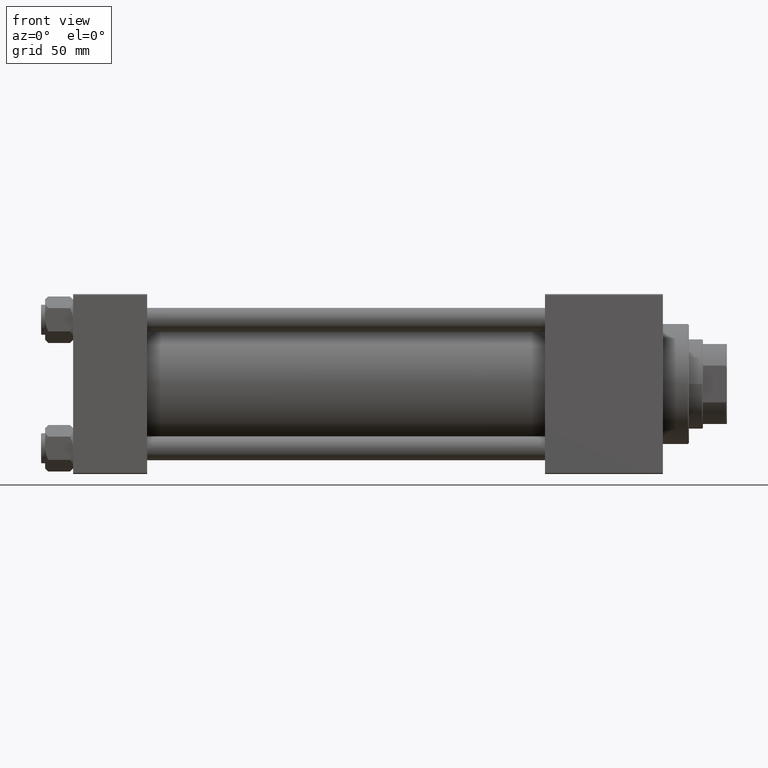
[diagram: clean part render]
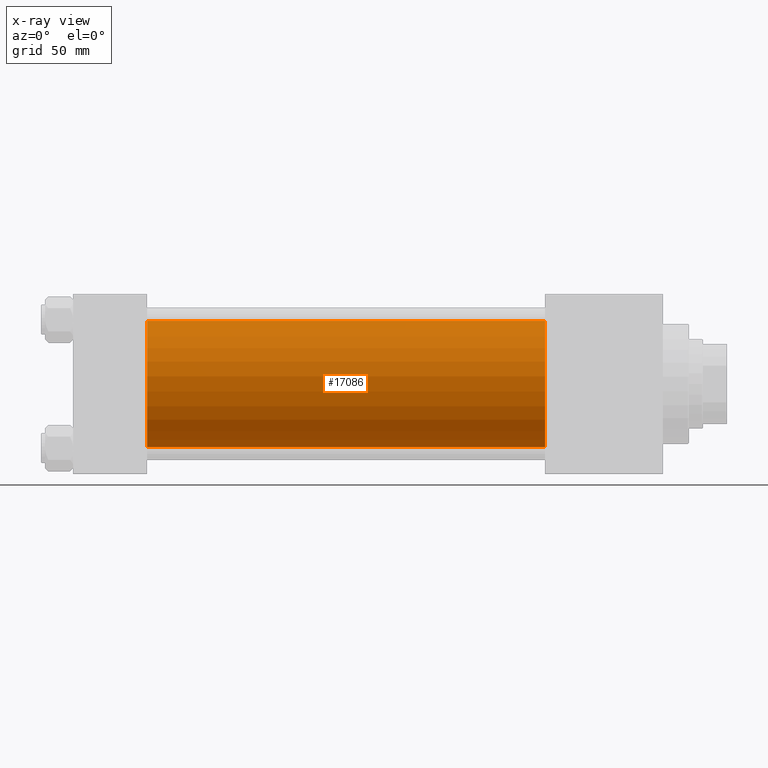
[diagram: x-ray — body ghosted, one internal face saturated and labeled with its STEP entity id]
A machine part, front view, then the same camera in x-ray: the body is ghosted and one INTERNAL B-rep face — a face not visible from any outside direction — is saturated and labeled: STEP entity #17086.
In plain terms, the highlighted cylindrical surface (partial cylindrical patch) has radius 31.5 mm, axis along (-1, -0, -0).
Its self-contained STEP definition (entity closure, byte-faithful):
#1173 = DIRECTION ( 'NONE',  ( 0.000000000000000000, 0.000000000000000000, 1.000000000000000000 ) ) ;
#1362 = EDGE_CURVE ( 'NONE', #16855, #44750, #28172, .T. ) ;
#2686 = CARTESIAN_POINT ( 'NONE',  ( 236.0000000000000284, -2.602085213965210642E-15, 0.000000000000000000 ) ) ;
#3130 = CARTESIAN_POINT ( 'NONE',  ( 37.00000000000000000, 1.255552203348951850E-15, -31.50000000000000000 ) ) ;
#3496 = EDGE_CURVE ( 'NONE', #34771, #36901, #18503, .T. ) ;
#4236 = CARTESIAN_POINT ( 'NONE',  ( 236.0000000000000284, -2.602085213965210642E-15, 0.000000000000000000 ) ) ;
#4750 = ORIENTED_EDGE ( 'NONE', *, *, #3496, .T. ) ;
#5701 = DIRECTION ( 'NONE',  ( 1.000000000000000000, 0.000000000000000000, 0.000000000000000000 ) ) ;
#6463 = CARTESIAN_POINT ( 'NONE',  ( 236.0000000000000284, 1.255552203348951850E-15, -31.50000000000000000 ) ) ;
#6485 = ORIENTED_EDGE ( 'NONE', *, *, #11753, .T. ) ;
#7745 = ORIENTED_EDGE ( 'NONE', *, *, #1362, .F. ) ;
#7965 = AXIS2_PLACEMENT_3D ( 'NONE', #40411, #5701, #47284 ) ;
#9036 = FACE_OUTER_BOUND ( 'NONE', #48735, .T. ) ;
#10211 = EDGE_CURVE ( 'NONE', #34771, #16855, #34133, .T. ) ;
#10746 = CARTESIAN_POINT ( 'NONE',  ( 236.0000000000000284, 1.255552203348951850E-15, -31.50000000000000000 ) ) ;
#11753 = EDGE_CURVE ( 'NONE', #36901, #44750, #33058, .T. ) ;
#12608 = ORIENTED_EDGE ( 'NONE', *, *, #10211, .F. ) ;
#13844 = DIRECTION ( 'NONE',  ( 0.000000000000000000, 0.000000000000000000, -1.000000000000000000 ) ) ;
#15256 = AXIS2_PLACEMENT_3D ( 'NONE', #2686, #17642, #13844 ) ;
#15897 = DIRECTION ( 'NONE',  ( -1.000000000000000000, -0.000000000000000000, -0.000000000000000000 ) ) ;
#16855 = VERTEX_POINT ( 'NONE', #25286 ) ;
#17086 = ADVANCED_FACE ( 'NONE', ( #9036 ), #35886, .F. ) ;
#17642 = DIRECTION ( 'NONE',  ( 1.000000000000000000, 0.000000000000000000, 0.000000000000000000 ) ) ;
#18503 = CIRCLE ( 'NONE', #15256, 31.50000000000000000 ) ;
#21415 = CARTESIAN_POINT ( 'NONE',  ( 236.0000000000000284, -2.602085213965210642E-15, 31.50000000000000000 ) ) ;
#24248 = VECTOR ( 'NONE', #38943, 1000.000000000000000 ) ;
#25286 = CARTESIAN_POINT ( 'NONE',  ( 37.00000000000000000, -2.602085213965210642E-15, 31.50000000000000000 ) ) ;
#27281 = CARTESIAN_POINT ( 'NONE',  ( 236.0000000000000284, -2.602085213965210642E-15, 31.50000000000000000 ) ) ;
#28172 = CIRCLE ( 'NONE', #7965, 31.50000000000000000 ) ;
#32808 = DIRECTION ( 'NONE',  ( -1.000000000000000000, -0.000000000000000000, -0.000000000000000000 ) ) ;
#33058 = LINE ( 'NONE', #6463, #42118 ) ;
#34133 = LINE ( 'NONE', #27281, #24248 ) ;
#34771 = VERTEX_POINT ( 'NONE', #21415 ) ;
#35886 = CYLINDRICAL_SURFACE ( 'NONE', #48785, 31.50000000000000000 ) ;
#36901 = VERTEX_POINT ( 'NONE', #10746 ) ;
#38943 = DIRECTION ( 'NONE',  ( -1.000000000000000000, -0.000000000000000000, -0.000000000000000000 ) ) ;
#40411 = CARTESIAN_POINT ( 'NONE',  ( 37.00000000000000000, -2.602085213965210642E-15, 0.000000000000000000 ) ) ;
#42118 = VECTOR ( 'NONE', #32808, 1000.000000000000000 ) ;
#44750 = VERTEX_POINT ( 'NONE', #3130 ) ;
#47284 = DIRECTION ( 'NONE',  ( 0.000000000000000000, 0.000000000000000000, -1.000000000000000000 ) ) ;
#48735 = EDGE_LOOP ( 'NONE', ( #4750, #6485, #7745, #12608 ) ) ;
#48785 = AXIS2_PLACEMENT_3D ( 'NONE', #4236, #15897, #1173 ) ;